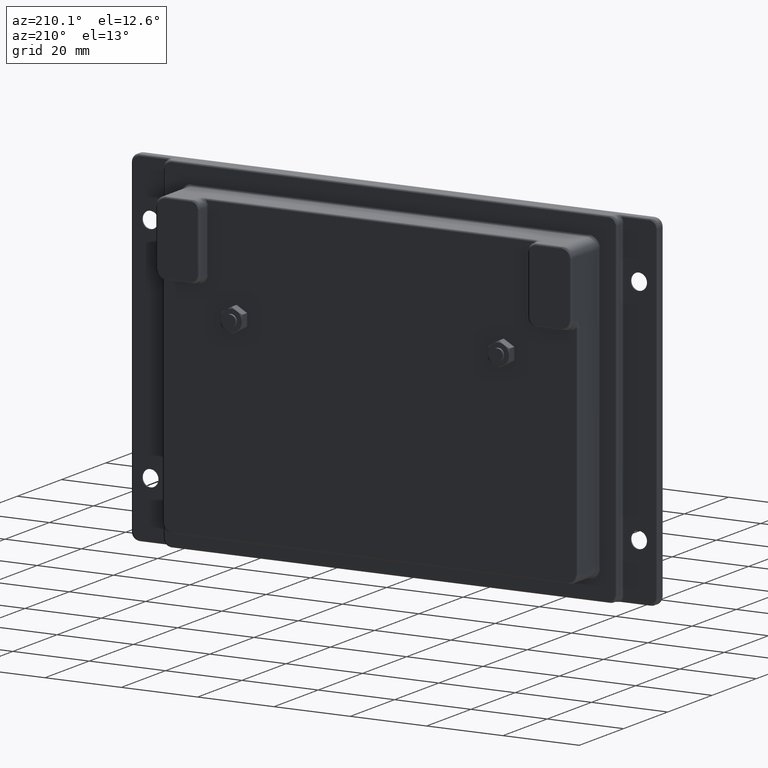
[diagram: clean part render]
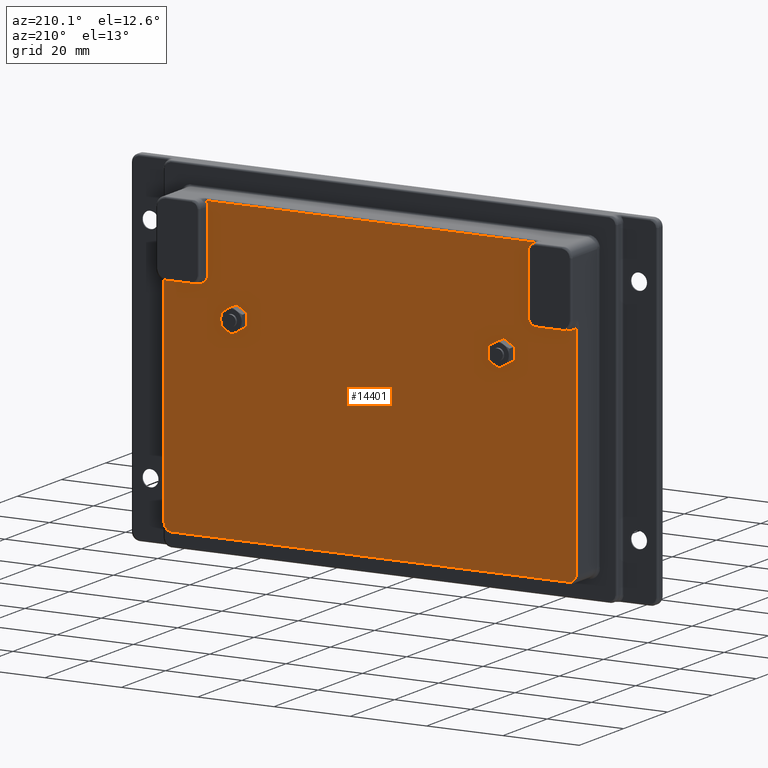
[diagram: same view with one face highlighted and labeled with its STEP entity id]
A machine part, auxiliary view. The second image highlights one B-rep face of the part: STEP entity #14401.
In plain terms, the highlighted face is a freeform B-spline surface patch.
Its self-contained STEP definition (entity closure, byte-faithful):
#9110=CARTESIAN_POINT('',(-36.489514289495922,7.500000000000000,-13.522948647597691));
#9111=VERTEX_POINT('',#9110);
#9112=CARTESIAN_POINT('',(-35.0,7.500000000000000,-15.199999999999999));
#9113=VERTEX_POINT('',#9112);
#9114=CARTESIAN_POINT('',(-36.489514289495922,7.500000000000000,-13.522948647597696));
#9115=CARTESIAN_POINT('',(-36.500000000000007,7.500000000000000,-13.611163820100556));
#9116=CARTESIAN_POINT('',(-36.500000000000007,7.500000000000000,-13.699999999999999));
#9117=CARTESIAN_POINT('',(-36.500000000000007,7.500000000000000,-15.199999999999996));
#9118=CARTESIAN_POINT('',(-35.0,7.500000000000000,-15.199999999999999));
#9126=(BOUNDED_CURVE()B_SPLINE_CURVE(2,(#9114,#9115,#9116,#9117,#9118),.UNSPECIFIED.,.F.,.U.)B_SPLINE_CURVE_WITH_KNOTS((3,2,3),(0.729562473420978,0.750000000000000,1.0),.UNSPECIFIED.)CURVE()GEOMETRIC_REPRESENTATION_ITEM()RATIONAL_B_SPLINE_CURVE((0.956026754002336,0.976055948222739,1.0,0.707106781186548,1.0))REPRESENTATION_ITEM(''));
#9127=EDGE_CURVE('',#9111,#9113,#9126,.T.);
#9168=CARTESIAN_POINT('',(-33.502797802464869,7.500000000000000,-13.791572810899130));
#9169=VERTEX_POINT('',#9168);
#9175=CARTESIAN_POINT('',(-35.0,7.500000000000000,-15.199999999999999));
#9176=CARTESIAN_POINT('',(-33.588940902657022,7.500000000000001,-15.199999999999998));
#9177=CARTESIAN_POINT('',(-33.502797802464869,7.500000000000000,-13.791572810899130));
#9185=(BOUNDED_CURVE()B_SPLINE_CURVE(2,(#9175,#9176,#9177),.UNSPECIFIED.,.F.,.U.)B_SPLINE_CURVE_WITH_KNOTS((3,3),(0.0,0.239332961873908),.UNSPECIFIED.)CURVE()GEOMETRIC_REPRESENTATION_ITEM()RATIONAL_B_SPLINE_CURVE((1.0,0.719603993714375,0.976072040884379))REPRESENTATION_ITEM(''));
#9186=EDGE_CURVE('',#9113,#9169,#9185,.T.);
#9209=CARTESIAN_POINT('',(-35.0,7.500000000000000,-12.199999999999999));
#9210=VERTEX_POINT('',#9209);
#9211=CARTESIAN_POINT('',(-35.0,7.500000000000000,-12.199999999999999));
#9212=CARTESIAN_POINT('',(-36.332261788175551,7.500000000000000,-12.199999999999999));
#9213=CARTESIAN_POINT('',(-36.489514289495915,7.500000000000000,-13.522948647597694));
#9221=(BOUNDED_CURVE()B_SPLINE_CURVE(2,(#9211,#9212,#9213),.UNSPECIFIED.,.F.,.U.)B_SPLINE_CURVE_WITH_KNOTS((3,3),(0.500000000000000,0.729562473420979),.UNSPECIFIED.)CURVE()GEOMETRIC_REPRESENTATION_ITEM()RATIONAL_B_SPLINE_CURVE((1.0,0.731050832963807,0.956026754002338))REPRESENTATION_ITEM(''));
#9222=EDGE_CURVE('',#9210,#9111,#9221,.T.);
#9224=CARTESIAN_POINT('',(-33.502797802464869,7.500000000000000,-13.791572810899133));
#9225=CARTESIAN_POINT('',(-33.499999999999993,7.500000000000000,-13.745829146549204));
#9226=CARTESIAN_POINT('',(-33.500000000000000,7.500000000000000,-13.699999999999999));
#9227=CARTESIAN_POINT('',(-33.500000000000007,7.500000000000000,-12.200000000000001));
#9228=CARTESIAN_POINT('',(-35.0,7.500000000000000,-12.199999999999999));
#9236=(BOUNDED_CURVE()B_SPLINE_CURVE(2,(#9224,#9225,#9226,#9227,#9228),.UNSPECIFIED.,.F.,.U.)B_SPLINE_CURVE_WITH_KNOTS((3,2,3),(0.239332961873908,0.250000000000000,0.500000000000000),.UNSPECIFIED.)CURVE()GEOMETRIC_REPRESENTATION_ITEM()RATIONAL_B_SPLINE_CURVE((0.976072040884378,0.987502787472172,1.0,0.707106781186548,1.0))REPRESENTATION_ITEM(''));
#9237=EDGE_CURVE('',#9169,#9210,#9236,.T.);
#9296=CARTESIAN_POINT('',(33.510485710504092,7.500000000000000,-13.522948647597691));
#9297=VERTEX_POINT('',#9296);
#9298=CARTESIAN_POINT('',(35.0,7.500000000000000,-15.199999999999999));
#9299=VERTEX_POINT('',#9298);
#9300=CARTESIAN_POINT('',(33.510485710504085,7.500000000000000,-13.522948647597696));
#9301=CARTESIAN_POINT('',(33.500000000000000,7.500000000000000,-13.611163820100556));
#9302=CARTESIAN_POINT('',(33.500000000000000,7.500000000000000,-13.699999999999999));
#9303=CARTESIAN_POINT('',(33.500000000000007,7.500000000000000,-15.199999999999996));
#9304=CARTESIAN_POINT('',(35.0,7.500000000000000,-15.199999999999999));
#9312=(BOUNDED_CURVE()B_SPLINE_CURVE(2,(#9300,#9301,#9302,#9303,#9304),.UNSPECIFIED.,.F.,.U.)B_SPLINE_CURVE_WITH_KNOTS((3,2,3),(0.729562473420978,0.750000000000000,1.0),.UNSPECIFIED.)CURVE()GEOMETRIC_REPRESENTATION_ITEM()RATIONAL_B_SPLINE_CURVE((0.956026754002336,0.976055948222739,1.0,0.707106781186548,1.0))REPRESENTATION_ITEM(''));
#9313=EDGE_CURVE('',#9297,#9299,#9312,.T.);
#9354=CARTESIAN_POINT('',(36.497202197535131,7.500000000000000,-13.791572810899130));
#9355=VERTEX_POINT('',#9354);
#9361=CARTESIAN_POINT('',(35.0,7.500000000000000,-15.199999999999999));
#9362=CARTESIAN_POINT('',(36.411059097342985,7.499999999999999,-15.199999999999999));
#9363=CARTESIAN_POINT('',(36.497202197535131,7.500000000000000,-13.791572810899128));
#9371=(BOUNDED_CURVE()B_SPLINE_CURVE(2,(#9361,#9362,#9363),.UNSPECIFIED.,.F.,.U.)B_SPLINE_CURVE_WITH_KNOTS((3,3),(0.0,0.239332961873908),.UNSPECIFIED.)CURVE()GEOMETRIC_REPRESENTATION_ITEM()RATIONAL_B_SPLINE_CURVE((1.0,0.719603993714375,0.976072040884379))REPRESENTATION_ITEM(''));
#9372=EDGE_CURVE('',#9299,#9355,#9371,.T.);
#9395=CARTESIAN_POINT('',(35.0,7.500000000000000,-12.199999999999999));
#9396=VERTEX_POINT('',#9395);
#9397=CARTESIAN_POINT('',(35.0,7.500000000000000,-12.199999999999999));
#9398=CARTESIAN_POINT('',(33.667738211824442,7.500000000000000,-12.199999999999999));
#9399=CARTESIAN_POINT('',(33.510485710504085,7.500000000000000,-13.522948647597694));
#9407=(BOUNDED_CURVE()B_SPLINE_CURVE(2,(#9397,#9398,#9399),.UNSPECIFIED.,.F.,.U.)B_SPLINE_CURVE_WITH_KNOTS((3,3),(0.500000000000000,0.729562473420979),.UNSPECIFIED.)CURVE()GEOMETRIC_REPRESENTATION_ITEM()RATIONAL_B_SPLINE_CURVE((1.0,0.731050832963807,0.956026754002338))REPRESENTATION_ITEM(''));
#9408=EDGE_CURVE('',#9396,#9297,#9407,.T.);
#9410=CARTESIAN_POINT('',(36.497202197535131,7.500000000000000,-13.791572810899128));
#9411=CARTESIAN_POINT('',(36.500000000000000,7.500000000000000,-13.745829146549211));
#9412=CARTESIAN_POINT('',(36.500000000000007,7.500000000000000,-13.699999999999999));
#9413=CARTESIAN_POINT('',(36.500000000000007,7.500000000000000,-12.200000000000001));
#9414=CARTESIAN_POINT('',(35.0,7.500000000000000,-12.199999999999999));
#9422=(BOUNDED_CURVE()B_SPLINE_CURVE(2,(#9410,#9411,#9412,#9413,#9414),.UNSPECIFIED.,.F.,.U.)B_SPLINE_CURVE_WITH_KNOTS((3,2,3),(0.239332961873908,0.250000000000000,0.500000000000000),.UNSPECIFIED.)CURVE()GEOMETRIC_REPRESENTATION_ITEM()RATIONAL_B_SPLINE_CURVE((0.976072040884379,0.987502787472173,1.0,0.707106781186548,1.0))REPRESENTATION_ITEM(''));
#9423=EDGE_CURVE('',#9355,#9396,#9422,.T.);
#11411=CARTESIAN_POINT('',(-42.500000000000000,7.500000000000000,11.300000000000001));
#11412=VERTEX_POINT('',#11411);
#11443=CARTESIAN_POINT('',(-43.0,7.500000000000000,12.800000000000001));
#11444=VERTEX_POINT('',#11443);
#11466=CARTESIAN_POINT('',(-42.499999999999993,7.500000000000000,11.300000000000001));
#11467=CARTESIAN_POINT('',(-42.499999999999993,7.500000000000000,12.133333333333333));
#11468=CARTESIAN_POINT('',(-43.0,7.500000000000000,12.800000000000001));
#11476=(BOUNDED_CURVE()B_SPLINE_CURVE(2,(#11466,#11467,#11468),.UNSPECIFIED.,.F.,.U.)CURVE()GEOMETRIC_REPRESENTATION_ITEM()QUASI_UNIFORM_CURVE()RATIONAL_B_SPLINE_CURVE((1.0,0.948683298050514,1.0))REPRESENTATION_ITEM(''));
#11477=EDGE_CURVE('',#11412,#11444,#11476,.T.);
#11614=CARTESIAN_POINT('',(-42.500000000000000,7.500000000000000,-4.199999999999905));
#11615=VERTEX_POINT('',#11614);
#11637=CARTESIAN_POINT('',(-42.500000000000000,7.500000000000000,-4.199999999999905));
#11638=CARTESIAN_POINT('',(-42.500000000000000,7.500000000000000,11.300000000000001));
#11639=QUASI_UNIFORM_CURVE('',1,(#11637,#11638),.UNSPECIFIED.,.F.,.U.);
#11640=EDGE_CURVE('',#11615,#11412,#11639,.T.);
#11661=CARTESIAN_POINT('',(43.0,7.500000000000000,12.800000000000001));
#11662=VERTEX_POINT('',#11661);
#11676=CARTESIAN_POINT('',(-43.0,7.500000000000000,12.800000000000001));
#11677=CARTESIAN_POINT('',(43.0,7.500000000000000,12.800000000000001));
#11678=QUASI_UNIFORM_CURVE('',1,(#11676,#11677),.UNSPECIFIED.,.F.,.U.);
#11679=EDGE_CURVE('',#11444,#11662,#11678,.T.);
#11707=CARTESIAN_POINT('',(-45.0,7.500000000000000,-6.699999999999901));
#11708=VERTEX_POINT('',#11707);
#11738=CARTESIAN_POINT('',(-45.0,7.500000000000000,-6.699999999999906));
#11739=CARTESIAN_POINT('',(-42.500000000000000,7.500000000000000,-6.699999999999906));
#11740=CARTESIAN_POINT('',(-42.499999999999993,7.500000000000000,-4.199999999999905));
#11748=(BOUNDED_CURVE()B_SPLINE_CURVE(2,(#11738,#11739,#11740),.UNSPECIFIED.,.F.,.U.)CURVE()GEOMETRIC_REPRESENTATION_ITEM()QUASI_UNIFORM_CURVE()RATIONAL_B_SPLINE_CURVE((1.0,0.707106781186548,1.0))REPRESENTATION_ITEM(''));
#11749=EDGE_CURVE('',#11708,#11615,#11748,.T.);
#11854=CARTESIAN_POINT('',(-52.0,7.500000000000000,-6.699999999999901));
#11855=VERTEX_POINT('',#11854);
#11877=CARTESIAN_POINT('',(-52.0,7.500000000000000,-6.699999999999901));
#11878=CARTESIAN_POINT('',(-45.0,7.500000000000000,-6.699999999999901));
#11879=QUASI_UNIFORM_CURVE('',1,(#11877,#11878),.UNSPECIFIED.,.F.,.U.);
#11880=EDGE_CURVE('',#11855,#11708,#11879,.T.);
#11904=CARTESIAN_POINT('',(42.500000000000000,7.500000000000000,11.300000000000001));
#11905=VERTEX_POINT('',#11904);
#11919=CARTESIAN_POINT('',(43.0,7.500000000000000,12.800000000000001));
#11920=CARTESIAN_POINT('',(42.499999999999993,7.500000000000000,12.133333333333333));
#11921=CARTESIAN_POINT('',(42.499999999999993,7.500000000000000,11.300000000000001));
#11929=(BOUNDED_CURVE()B_SPLINE_CURVE(2,(#11919,#11920,#11921),.UNSPECIFIED.,.F.,.U.)CURVE()GEOMETRIC_REPRESENTATION_ITEM()QUASI_UNIFORM_CURVE()RATIONAL_B_SPLINE_CURVE((1.0,0.948683298050514,1.0))REPRESENTATION_ITEM(''));
#11930=EDGE_CURVE('',#11662,#11905,#11929,.T.);
#11966=CARTESIAN_POINT('',(-54.0,7.500000000000000,-5.936067977500731));
#11967=VERTEX_POINT('',#11966);
#12005=CARTESIAN_POINT('',(-54.0,7.500000000000000,-5.936067977500731));
#12006=CARTESIAN_POINT('',(-53.145898033749909,7.500000000000000,-6.699999999999904));
#12007=CARTESIAN_POINT('',(-52.0,7.500000000000000,-6.699999999999906));
#12015=(BOUNDED_CURVE()B_SPLINE_CURVE(2,(#12005,#12006,#12007),.UNSPECIFIED.,.F.,.U.)CURVE()GEOMETRIC_REPRESENTATION_ITEM()QUASI_UNIFORM_CURVE()RATIONAL_B_SPLINE_CURVE((1.0,0.934172358962757,1.0))REPRESENTATION_ITEM(''));
#12016=EDGE_CURVE('',#11967,#11855,#12015,.T.);
#12037=CARTESIAN_POINT('',(42.500000000000000,7.500000000000000,-4.199999999999905));
#12038=VERTEX_POINT('',#12037);
#12052=CARTESIAN_POINT('',(42.500000000000000,7.500000000000000,11.300000000000001));
#12053=CARTESIAN_POINT('',(42.500000000000000,7.500000000000000,-4.199999999999905));
#12054=QUASI_UNIFORM_CURVE('',1,(#12052,#12053),.UNSPECIFIED.,.F.,.U.);
#12055=EDGE_CURVE('',#11905,#12038,#12054,.T.);
#12155=CARTESIAN_POINT('',(45.0,7.500000000000000,-6.699999999999901));
#12156=VERTEX_POINT('',#12155);
#12170=CARTESIAN_POINT('',(42.499999999999993,7.500000000000000,-4.199999999999905));
#12171=CARTESIAN_POINT('',(42.500000000000000,7.500000000000000,-6.699999999999906));
#12172=CARTESIAN_POINT('',(45.0,7.500000000000000,-6.699999999999906));
#12180=(BOUNDED_CURVE()B_SPLINE_CURVE(2,(#12170,#12171,#12172),.UNSPECIFIED.,.F.,.U.)CURVE()GEOMETRIC_REPRESENTATION_ITEM()QUASI_UNIFORM_CURVE()RATIONAL_B_SPLINE_CURVE((1.0,0.707106781186548,1.0))REPRESENTATION_ITEM(''));
#12181=EDGE_CURVE('',#12038,#12156,#12180,.T.);
#12214=CARTESIAN_POINT('',(-54.0,7.500000000000000,-63.200000000000003));
#12215=VERTEX_POINT('',#12214);
#12237=CARTESIAN_POINT('',(-54.0,7.500000000000000,-63.200000000000003));
#12238=CARTESIAN_POINT('',(-54.0,7.500000000000000,-5.936067977500731));
#12239=QUASI_UNIFORM_CURVE('',1,(#12237,#12238),.UNSPECIFIED.,.F.,.U.);
#12240=EDGE_CURVE('',#12215,#11967,#12239,.T.);
#12261=CARTESIAN_POINT('',(52.0,7.500000000000000,-6.699999999999901));
#12262=VERTEX_POINT('',#12261);
#12276=CARTESIAN_POINT('',(45.0,7.500000000000000,-6.699999999999901));
#12277=CARTESIAN_POINT('',(52.0,7.500000000000000,-6.699999999999901));
#12278=QUASI_UNIFORM_CURVE('',1,(#12276,#12277),.UNSPECIFIED.,.F.,.U.);
#12279=EDGE_CURVE('',#12156,#12262,#12278,.T.);
#12307=CARTESIAN_POINT('',(-52.0,7.500000000000000,-65.199999999999989));
#12308=VERTEX_POINT('',#12307);
#12338=CARTESIAN_POINT('',(-52.0,7.500000000000000,-65.200000000000003));
#12339=CARTESIAN_POINT('',(-54.0,7.500000000000000,-65.200000000000003));
#12340=CARTESIAN_POINT('',(-54.0,7.500000000000000,-63.200000000000003));
#12348=(BOUNDED_CURVE()B_SPLINE_CURVE(2,(#12338,#12339,#12340),.UNSPECIFIED.,.F.,.U.)CURVE()GEOMETRIC_REPRESENTATION_ITEM()QUASI_UNIFORM_CURVE()RATIONAL_B_SPLINE_CURVE((1.0,0.707106781186548,1.0))REPRESENTATION_ITEM(''));
#12349=EDGE_CURVE('',#12308,#12215,#12348,.T.);
#12373=CARTESIAN_POINT('',(54.0,7.500000000000000,-5.936067977500930));
#12374=VERTEX_POINT('',#12373);
#12396=CARTESIAN_POINT('',(52.0,7.500000000000000,-6.699999999999906));
#12397=CARTESIAN_POINT('',(53.145898033749837,7.499999999999999,-6.699999999999906));
#12398=CARTESIAN_POINT('',(54.0,7.500000000000000,-5.936067977500930));
#12406=(BOUNDED_CURVE()B_SPLINE_CURVE(2,(#12396,#12397,#12398),.UNSPECIFIED.,.F.,.U.)CURVE()GEOMETRIC_REPRESENTATION_ITEM()QUASI_UNIFORM_CURVE()RATIONAL_B_SPLINE_CURVE((1.0,0.934172358962765,1.0))REPRESENTATION_ITEM(''));
#12407=EDGE_CURVE('',#12262,#12374,#12406,.T.);
#12440=CARTESIAN_POINT('',(52.0,7.500000000000000,-65.199999999999989));
#12441=VERTEX_POINT('',#12440);
#12463=CARTESIAN_POINT('',(52.0,7.500000000000000,-65.199999999999989));
#12464=CARTESIAN_POINT('',(-52.0,7.500000000000000,-65.199999999999989));
#12465=QUASI_UNIFORM_CURVE('',1,(#12463,#12464),.UNSPECIFIED.,.F.,.U.);
#12466=EDGE_CURVE('',#12441,#12308,#12465,.T.);
#12558=CARTESIAN_POINT('',(54.0,7.500000000000000,-63.200000000000003));
#12559=VERTEX_POINT('',#12558);
#12589=CARTESIAN_POINT('',(54.0,7.500000000000000,-63.200000000000003));
#12590=CARTESIAN_POINT('',(54.0,7.500000000000000,-65.200000000000003));
#12591=CARTESIAN_POINT('',(52.0,7.500000000000000,-65.200000000000003));
#12599=(BOUNDED_CURVE()B_SPLINE_CURVE(2,(#12589,#12590,#12591),.UNSPECIFIED.,.F.,.U.)CURVE()GEOMETRIC_REPRESENTATION_ITEM()QUASI_UNIFORM_CURVE()RATIONAL_B_SPLINE_CURVE((1.0,0.707106781186548,1.0))REPRESENTATION_ITEM(''));
#12600=EDGE_CURVE('',#12559,#12441,#12599,.T.);
#12626=CARTESIAN_POINT('',(54.0,7.500000000000000,-5.936067977500930));
#12627=CARTESIAN_POINT('',(54.0,7.500000000000000,-63.200000000000003));
#12628=QUASI_UNIFORM_CURVE('',1,(#12626,#12627),.UNSPECIFIED.,.F.,.U.);
#12629=EDGE_CURVE('',#12374,#12559,#12628,.T.);
#14366=CARTESIAN_POINT('',(-59.394599790675052,7.500000000000000,-69.096096919988085));
#14367=CARTESIAN_POINT('',(59.394602687460782,7.500000000000000,-69.096096919988085));
#14368=CARTESIAN_POINT('',(-59.394599790675052,7.500000000000000,16.696101801608499));
#14369=CARTESIAN_POINT('',(59.394602687460782,7.500000000000000,16.696101801608499));
#14370=B_SPLINE_SURFACE_WITH_KNOTS('',1,1,((#14366,#14368),(#14367,#14369)),.UNSPECIFIED.,.F.,.F.,.U.,(2,2),(2,2),(0.0,118.789202478135810),(0.0,85.792198721596591),.UNSPECIFIED.);
#14371=ORIENTED_EDGE('',*,*,#11640,.T.);
#14372=ORIENTED_EDGE('',*,*,#11477,.T.);
#14373=ORIENTED_EDGE('',*,*,#11679,.T.);
#14374=ORIENTED_EDGE('',*,*,#11930,.T.);
#14375=ORIENTED_EDGE('',*,*,#12055,.T.);
#14376=ORIENTED_EDGE('',*,*,#12181,.T.);
#14377=ORIENTED_EDGE('',*,*,#12279,.T.);
#14378=ORIENTED_EDGE('',*,*,#12407,.T.);
#14379=ORIENTED_EDGE('',*,*,#12629,.T.);
#14380=ORIENTED_EDGE('',*,*,#12600,.T.);
#14381=ORIENTED_EDGE('',*,*,#12466,.T.);
#14382=ORIENTED_EDGE('',*,*,#12349,.T.);
#14383=ORIENTED_EDGE('',*,*,#12240,.T.);
#14384=ORIENTED_EDGE('',*,*,#12016,.T.);
#14385=ORIENTED_EDGE('',*,*,#11880,.T.);
#14386=ORIENTED_EDGE('',*,*,#11749,.T.);
#14387=EDGE_LOOP('',(#14371,#14372,#14373,#14374,#14375,#14376,#14377,#14378,#14379,#14380,#14381,#14382,#14383,#14384,#14385,#14386));
#14388=FACE_OUTER_BOUND('',#14387,.T.);
#14389=ORIENTED_EDGE('',*,*,#9372,.T.);
#14390=ORIENTED_EDGE('',*,*,#9423,.T.);
#14391=ORIENTED_EDGE('',*,*,#9408,.T.);
#14392=ORIENTED_EDGE('',*,*,#9313,.T.);
#14393=EDGE_LOOP('',(#14389,#14390,#14391,#14392));
#14394=FACE_BOUND('',#14393,.T.);
#14395=ORIENTED_EDGE('',*,*,#9186,.T.);
#14396=ORIENTED_EDGE('',*,*,#9237,.T.);
#14397=ORIENTED_EDGE('',*,*,#9222,.T.);
#14398=ORIENTED_EDGE('',*,*,#9127,.T.);
#14399=EDGE_LOOP('',(#14395,#14396,#14397,#14398));
#14400=FACE_BOUND('',#14399,.T.);
#14401=ADVANCED_FACE('',(#14388,#14394,#14400),#14370,.F.);